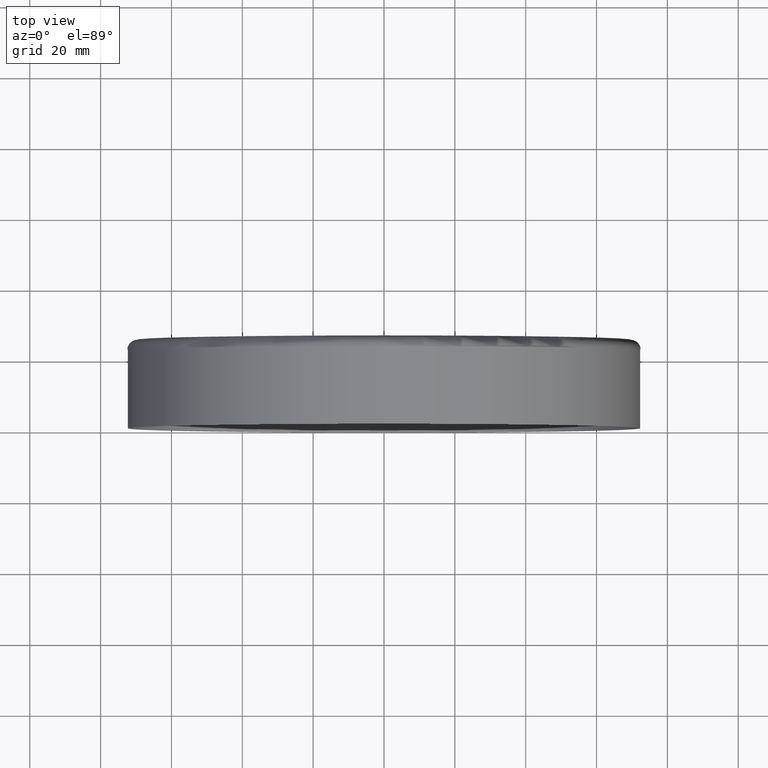
[diagram: clean part render]
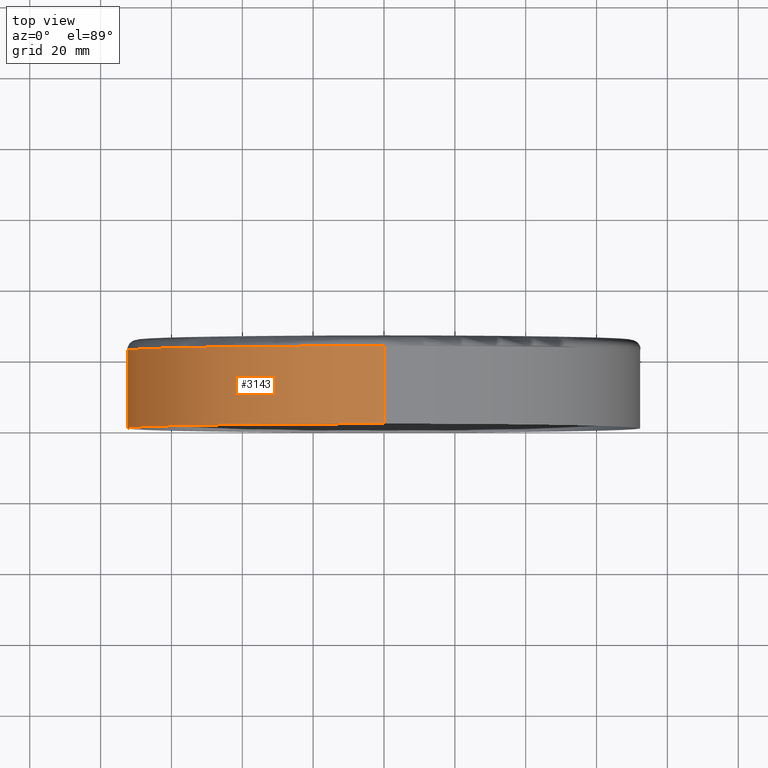
[diagram: same view with one face highlighted and labeled with its STEP entity id]
A machine part, top view. The second image highlights one B-rep face of the part: STEP entity #3143.
In plain terms, the highlighted cylindrical surface (partial cylindrical patch) has radius 72.5 mm, axis along (-0, -1, -0).
Its self-contained STEP definition (entity closure, byte-faithful):
#37 = CARTESIAN_POINT ( 'NONE',  ( 0.000000000000000000, 0.000000000000000000, 0.000000000000000000 ) ) ;
#54 = ORIENTED_EDGE ( 'NONE', *, *, #3864, .F. ) ;
#438 = VERTEX_POINT ( 'NONE', #5345 ) ;
#512 = EDGE_CURVE ( 'NONE', #2169, #6599, #9487, .T. ) ;
#955 = LINE ( 'NONE', #10705, #12175 ) ;
#1348 = DIRECTION ( 'NONE',  ( -0.000000000000000000, -1.000000000000000000, -0.000000000000000000 ) ) ;
#1897 = DIRECTION ( 'NONE',  ( 0.000000000000000000, 0.000000000000000000, -1.000000000000000000 ) ) ;
#2169 = VERTEX_POINT ( 'NONE', #4624 ) ;
#2171 = EDGE_LOOP ( 'NONE', ( #54, #8346, #13745, #16078 ) ) ;
#2319 = CYLINDRICAL_SURFACE ( 'NONE', #9337, 72.50000000000000000 ) ;
#3143 = ADVANCED_FACE ( 'NONE', ( #7524 ), #2319, .T. ) ;
#3864 = EDGE_CURVE ( 'NONE', #2169, #8927, #955, .T. ) ;
#4624 = CARTESIAN_POINT ( 'NONE',  ( 8.878689293818309285E-15, 22.00000000000000355, 72.50000000000000000 ) ) ;
#4970 = EDGE_CURVE ( 'NONE', #6599, #438, #13316, .T. ) ;
#5345 = CARTESIAN_POINT ( 'NONE',  ( 0.000000000000000000, 0.000000000000000000, -72.50000000000000000 ) ) ;
#5433 = DIRECTION ( 'NONE',  ( -0.000000000000000000, -1.000000000000000000, -0.000000000000000000 ) ) ;
#6150 = DIRECTION ( 'NONE',  ( 0.000000000000000000, 0.000000000000000000, -1.000000000000000000 ) ) ;
#6565 = CARTESIAN_POINT ( 'NONE',  ( 0.000000000000000000, 0.000000000000000000, 0.000000000000000000 ) ) ;
#6599 = VERTEX_POINT ( 'NONE', #15351 ) ;
#6912 = DIRECTION ( 'NONE',  ( -0.000000000000000000, -1.000000000000000000, -0.000000000000000000 ) ) ;
#7524 = FACE_OUTER_BOUND ( 'NONE', #2171, .T. ) ;
#8223 = CIRCLE ( 'NONE', #9071, 72.50000000000000000 ) ;
#8346 = ORIENTED_EDGE ( 'NONE', *, *, #512, .T. ) ;
#8539 = CARTESIAN_POINT ( 'NONE',  ( 0.000000000000000000, 0.000000000000000000, -72.50000000000000000 ) ) ;
#8927 = VERTEX_POINT ( 'NONE', #13367 ) ;
#9071 = AXIS2_PLACEMENT_3D ( 'NONE', #37, #1348, #6150 ) ;
#9212 = DIRECTION ( 'NONE',  ( 0.000000000000000000, 0.000000000000000000, -1.000000000000000000 ) ) ;
#9275 = DIRECTION ( 'NONE',  ( -0.000000000000000000, -1.000000000000000000, -0.000000000000000000 ) ) ;
#9337 = AXIS2_PLACEMENT_3D ( 'NONE', #6565, #5433, #9212 ) ;
#9487 = CIRCLE ( 'NONE', #14515, 72.50000000000000000 ) ;
#10705 = CARTESIAN_POINT ( 'NONE',  ( 8.878689293818309285E-15, 0.000000000000000000, 72.50000000000000000 ) ) ;
#10808 = VECTOR ( 'NONE', #13848, 1000.000000000000000 ) ;
#12175 = VECTOR ( 'NONE', #6912, 1000.000000000000000 ) ;
#13316 = LINE ( 'NONE', #8539, #10808 ) ;
#13367 = CARTESIAN_POINT ( 'NONE',  ( 8.878689293818309285E-15, 0.000000000000000000, 72.50000000000000000 ) ) ;
#13745 = ORIENTED_EDGE ( 'NONE', *, *, #4970, .T. ) ;
#13848 = DIRECTION ( 'NONE',  ( -0.000000000000000000, -1.000000000000000000, -0.000000000000000000 ) ) ;
#14515 = AXIS2_PLACEMENT_3D ( 'NONE', #15674, #9275, #1897 ) ;
#15351 = CARTESIAN_POINT ( 'NONE',  ( 0.000000000000000000, 22.00000000000000355, -72.50000000000000000 ) ) ;
#15674 = CARTESIAN_POINT ( 'NONE',  ( 0.000000000000000000, 22.00000000000000355, 0.000000000000000000 ) ) ;
#15802 = EDGE_CURVE ( 'NONE', #8927, #438, #8223, .T. ) ;
#16078 = ORIENTED_EDGE ( 'NONE', *, *, #15802, .F. ) ;